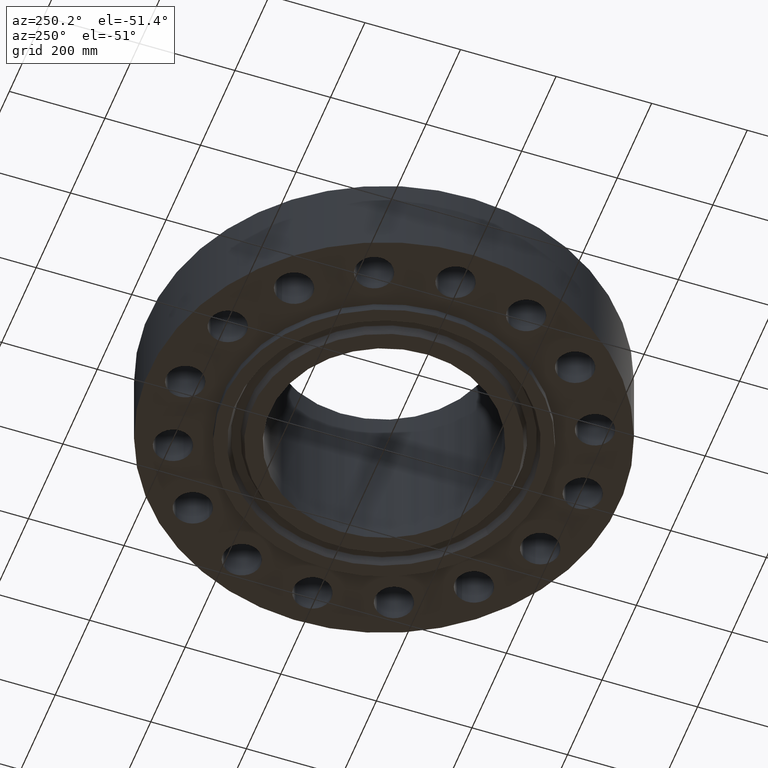
[diagram: clean part render]
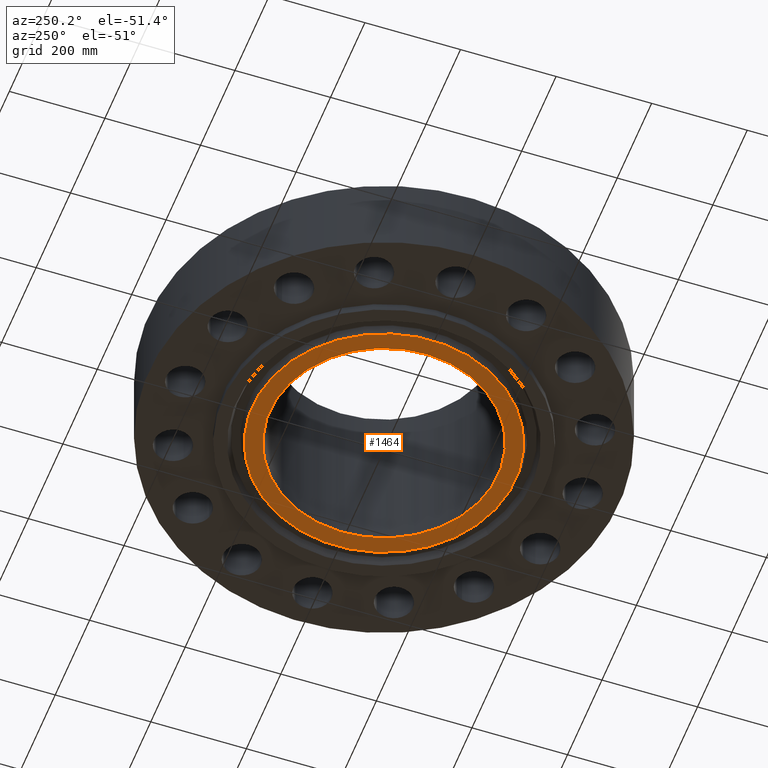
[diagram: same view with one face highlighted and labeled with its STEP entity id]
A machine part, auxiliary view. The second image highlights one B-rep face of the part: STEP entity #1464.
In plain terms, the highlighted planar face has unit normal (0, 0, -1).
Its self-contained STEP definition (entity closure, byte-faithful):
#363=AXIS2_PLACEMENT_3D('Circle Axis2P3D',#361,#362,$) ;
#387=AXIS2_PLACEMENT_3D('Circle Axis2P3D',#385,#386,$) ;
#1417=AXIS2_PLACEMENT_3D('Plane Axis2P3D',#1414,#1415,#1416) ;
#1444=AXIS2_PLACEMENT_3D('Circle Axis2P3D',#1442,#1443,$) ;
#1453=AXIS2_PLACEMENT_3D('Circle Axis2P3D',#1451,#1452,$) ;
#358=CARTESIAN_POINT('Vertex',(4.50947661613,8.25454157717,-0.688000000003)) ;
#361=CARTESIAN_POINT('Axis2P3D Location',(0.,0.,-0.688000000003)) ;
#365=CARTESIAN_POINT('Vertex',(-4.50947661613,-8.25454157717,-0.688000000003)) ;
#385=CARTESIAN_POINT('Axis2P3D Location',(0.,0.,-0.688000000003)) ;
#1414=CARTESIAN_POINT('Axis2P3D Location',(0.,9.40600000004,-0.688000000003)) ;
#1442=CARTESIAN_POINT('Axis2P3D Location',(1.1189649382E-015,1.1189649382E-015,-0.688000000003)) ;
#1446=CARTESIAN_POINT('Vertex',(-5.19865082788,9.5160665099,-0.688000000003)) ;
#1448=CARTESIAN_POINT('Vertex',(5.19865082788,-9.5160665099,-0.688000000003)) ;
#1451=CARTESIAN_POINT('Axis2P3D Location',(3.35689481461E-015,-1.1189649382E-015,-0.688000000003)) ;
#362=DIRECTION('Axis2P3D Direction',(0.,0.,-0.0393700787402)) ;
#386=DIRECTION('Axis2P3D Direction',(0.,0.,-0.0393700787402)) ;
#1415=DIRECTION('Axis2P3D Direction',(0.,0.,-0.0393700787402)) ;
#1416=DIRECTION('Axis2P3D XDirection',(0.0393700787402,0.,0.)) ;
#1443=DIRECTION('Axis2P3D Direction',(0.,0.,-0.0393700787402)) ;
#1452=DIRECTION('Axis2P3D Direction',(0.,0.,-0.0393700787402)) ;
#1457=ORIENTED_EDGE('',*,*,#1450,.T.) ;
#1458=ORIENTED_EDGE('',*,*,#1455,.T.) ;
#1461=ORIENTED_EDGE('',*,*,#367,.F.) ;
#1462=ORIENTED_EDGE('',*,*,#389,.F.) ;
#1463=FACE_BOUND('',#1460,.T.) ;
#1464=ADVANCED_FACE('PartBody',(#1459,#1463),#1418,.T.) ;
#364=CIRCLE('generated circle',#363,9.40600000004) ;
#388=CIRCLE('generated circle',#387,9.40600000004) ;
#1445=CIRCLE('generated circle',#1444,10.8435) ;
#1454=CIRCLE('generated circle',#1453,10.8435) ;
#367=EDGE_CURVE('',#359,#366,#364,.T.) ;
#389=EDGE_CURVE('',#366,#359,#388,.T.) ;
#1450=EDGE_CURVE('',#1447,#1449,#1445,.T.) ;
#1455=EDGE_CURVE('',#1449,#1447,#1454,.T.) ;
#1456=EDGE_LOOP('',(#1457,#1458)) ;
#1460=EDGE_LOOP('',(#1461,#1462)) ;
#1459=FACE_OUTER_BOUND('',#1456,.T.) ;
#1418=PLANE('',#1417) ;
#359=VERTEX_POINT('',#358) ;
#366=VERTEX_POINT('',#365) ;
#1447=VERTEX_POINT('',#1446) ;
#1449=VERTEX_POINT('',#1448) ;